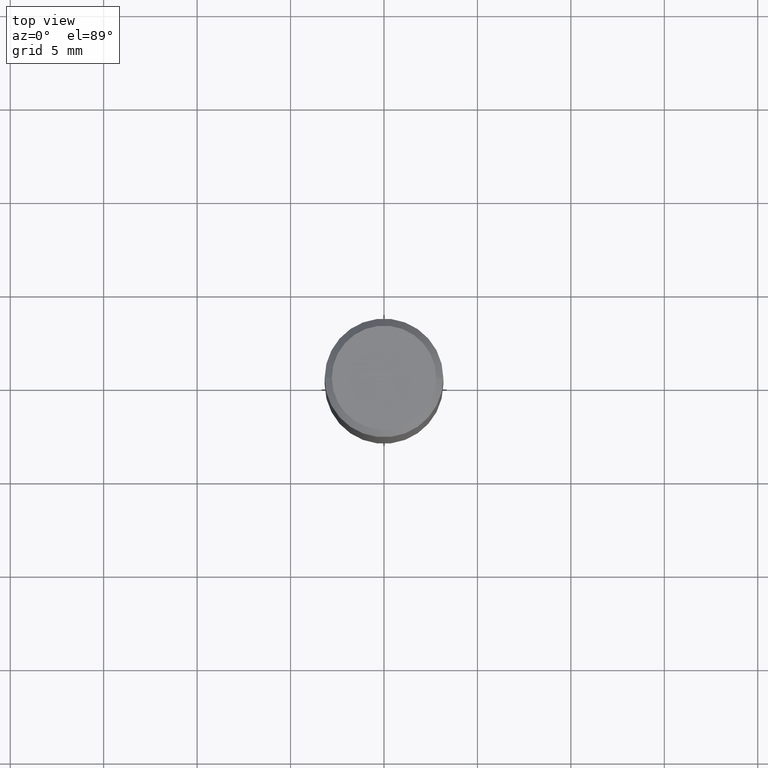
[diagram: clean part render]
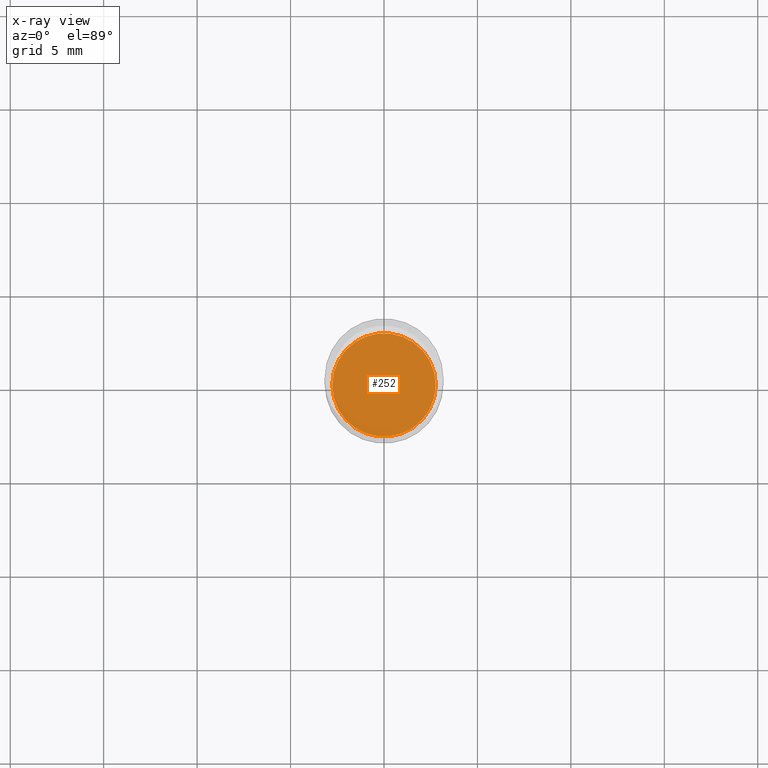
[diagram: x-ray — body ghosted, one internal face saturated and labeled with its STEP entity id]
A machine part, top view, then the same camera in x-ray: the body is ghosted and one INTERNAL B-rep face — a face not visible from any outside direction — is saturated and labeled: STEP entity #252.
In plain terms, the highlighted planar face has unit normal (-0, 0, 1).
Its self-contained STEP definition (entity closure, byte-faithful):
#9 = DIRECTION ( 'NONE',  ( -2.445468806185136597E-29, 3.491481338843145583E-15, 1.000000000000000000 ) ) ;
#12 = AXIS2_PLACEMENT_3D ( 'NONE', #349, #464, #449 ) ;
#23 = EDGE_CURVE ( 'NONE', #175, #261, #28, .T. ) ;
#28 = CIRCLE ( 'NONE', #12, 0.1088999999999999968 ) ;
#55 = EDGE_CURVE ( 'NONE', #261, #175, #461, .T. ) ;
#62 = CARTESIAN_POINT ( 'NONE',  ( 0.1088999999999999968, -3.815490807087786506E-15, -0.8750000000000001110 ) ) ;
#99 = CARTESIAN_POINT ( 'NONE',  ( -0.1088999999999999968, -2.278615905070892449E-15, -0.8750000000000001110 ) ) ;
#117 = PLANE ( 'NONE',  #390 ) ;
#175 = VERTEX_POINT ( 'NONE', #62 ) ;
#181 = CARTESIAN_POINT ( 'NONE',  ( 2.139785205411994522E-29, -3.055046171487752730E-15, -0.8750000000000001110 ) ) ;
#182 = FACE_OUTER_BOUND ( 'NONE', #361, .T. ) ;
#200 = ORIENTED_EDGE ( 'NONE', *, *, #55, .F. ) ;
#223 = CARTESIAN_POINT ( 'NONE',  ( 2.139785205411994522E-29, -3.055046171487752730E-15, -0.8750000000000001110 ) ) ;
#252 = ADVANCED_FACE ( 'NONE', ( #182 ), #117, .F. ) ;
#259 = AXIS2_PLACEMENT_3D ( 'NONE', #181, #9, #403 ) ;
#261 = VERTEX_POINT ( 'NONE', #99 ) ;
#349 = CARTESIAN_POINT ( 'NONE',  ( 2.139785205411994522E-29, -3.055046171487752730E-15, -0.8750000000000001110 ) ) ;
#361 = EDGE_LOOP ( 'NONE', ( #375, #200 ) ) ;
#363 = DIRECTION ( 'NONE',  ( -2.438088387897960049E-29, 3.491481338843145188E-15, 1.000000000000000000 ) ) ;
#375 = ORIENTED_EDGE ( 'NONE', *, *, #23, .F. ) ;
#390 = AXIS2_PLACEMENT_3D ( 'NONE', #223, #363, #406 ) ;
#403 = DIRECTION ( 'NONE',  ( 1.000000000000000000, -6.982962677686264344E-15, 0.000000000000000000 ) ) ;
#406 = DIRECTION ( 'NONE',  ( 1.000000000000000000, -6.982962677686265922E-15, 4.876176775795935793E-29 ) ) ;
#449 = DIRECTION ( 'NONE',  ( 1.000000000000000000, -6.982962677686264344E-15, 0.000000000000000000 ) ) ;
#461 = CIRCLE ( 'NONE', #259, 0.1088999999999999968 ) ;
#464 = DIRECTION ( 'NONE',  ( -2.445468806185136597E-29, 3.491481338843145583E-15, 1.000000000000000000 ) ) ;